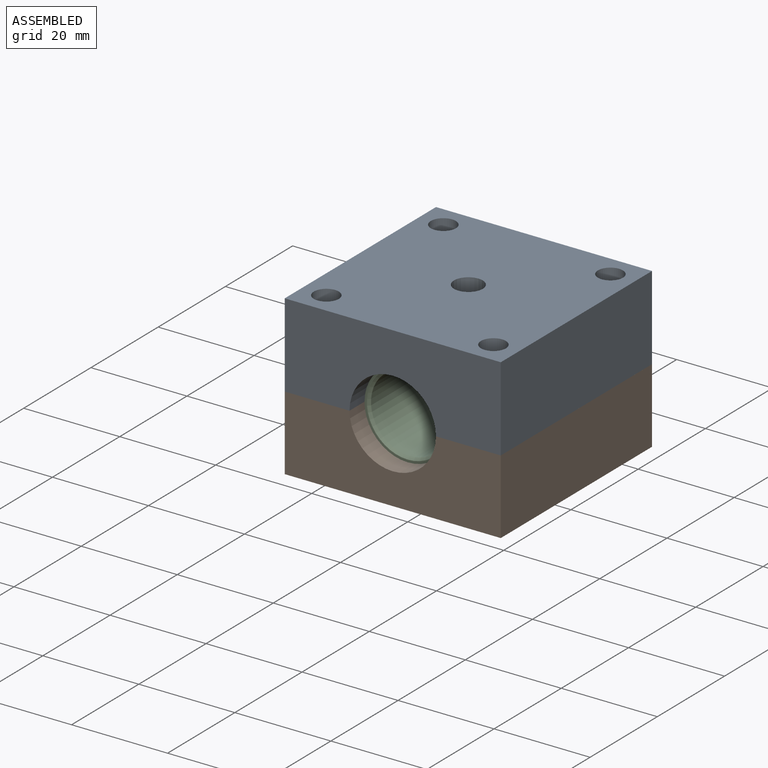
[diagram: assembled view]
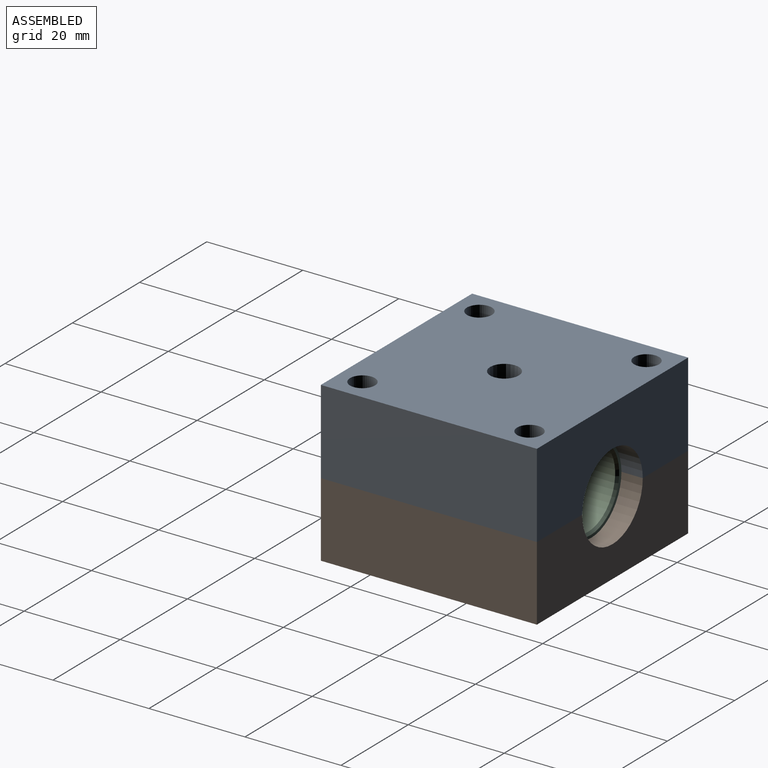
[diagram: assembled view, second angle]
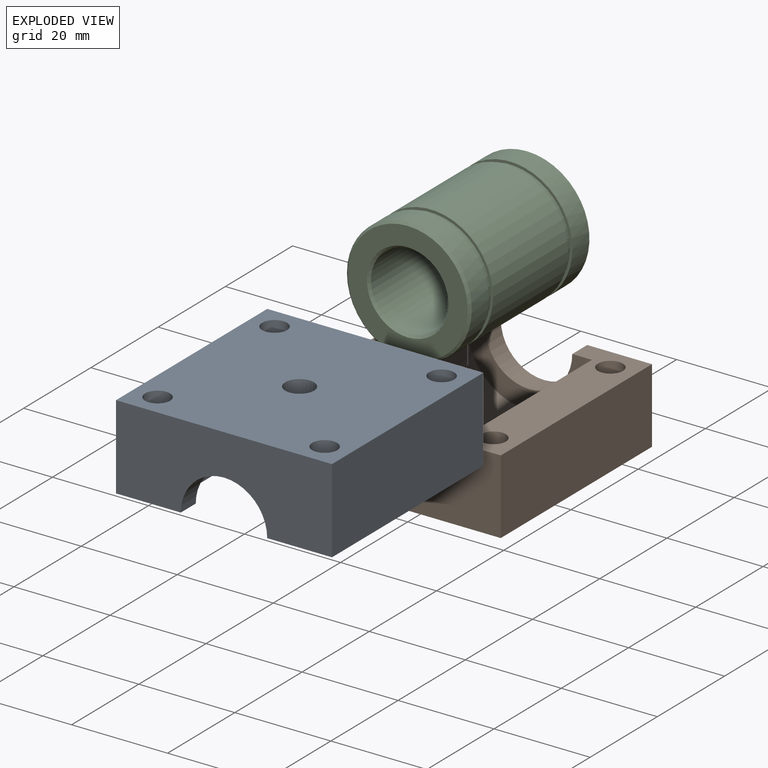
[diagram: exploded view]
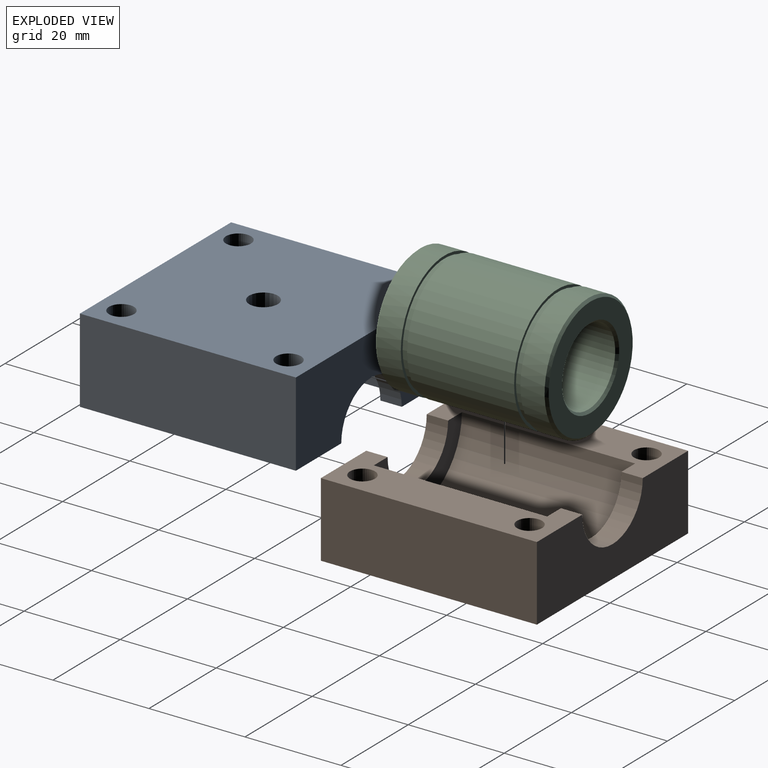
[diagram: exploded view, second angle]
ASSEMBLY  parts=3 mates=4
PART A: 115 faces, bbox 45x45x17.6 mm
  f0: plane 26.2x13.1mm, normal (0,-1,0), area 141.7mm2, adj f1,f2,f3,f4,f5,f6,f7,f8
  f1: plane 36.1x2.05mm, normal (-1,0,0.08), area 74.2mm2, adj f0,f2,f18,f34
  f2: plane 36.1x2mm, normal (-0.97,0,0.23), area 74.2mm2, adj f0,f1,f3,f18
  f3: plane 36.1x1.9mm, normal (-0.92,0,0.38), area 74.2mm2, adj f0,f2,f4,f18
  f4: plane 36.1x1.75mm, normal (-0.85,0,0.52), area 74.2mm2, adj f0,f3,f5,f18
  f5: plane 36.1x1.56mm, normal (-0.76,0,0.65), area 74.2mm2, adj f0,f4,f6,f18
  f6: plane 36.1x1.56mm, normal (-0.65,0,0.76), area 74.2mm2, adj f0,f5,f7,f18
  f7: plane 36.1x1.75mm, normal (-0.52,0,0.85), area 74.2mm2, adj f0,f6,f9,f18
  f8: plane 17.27x1.92mm, normal (-0.23,0,0.97), area 7.7mm2, adj f0,f87,f99,f112,f113
  f9: plane 36.1x1.9mm, normal (-0.38,0,0.92), area 74.2mm2, adj f0,f7,f18,f33
  f10: plane 15.87x2.05mm, normal (-0.08,0,1), area 31.5mm2, adj f0,f11,f12,f100,f104,f111
  f11: plane 15.87x1.98mm, normal (-0.23,0,0.97), area 16.2mm2, adj f0,f10,f112
  f12: plane 15.87x2.05mm, normal (0.08,0,1), area 31.5mm2, adj f0,f10,f13,f97,f101,f108
  f13: plane 17.27x0.85mm, normal (0.23,0,0.97), area 6.9mm2, adj f0,f12,f44,f97,f105,f109
  f14: plane 0.15x0.02mm, normal (-0.23,0,0.97), area 0mm2, adj f18,f31,f32,f33,f50,f51
  f15: plane 15.87x2.05mm, normal (-0.08,0,1), area 31.5mm2, adj f16,f18,f51,f92,f93,f98
  f16: plane 15.87x2.05mm, normal (0.08,0,1), area 31.5mm2, adj f15,f17,f18,f94,f107,f110
  f17: plane 36.1x2mm, normal (0.23,0,0.97), area 44mm2, adj f0,f16,f18,f30,f45,f47,f94,f95
  f18: plane 26.2x13.1mm, normal (0,1,0), area 141.7mm2, adj f1,f2,f3,f4,f5,f6,f7,f9
  f19: cylinder r=2.6mm len=17.55mm, axis (0,0,1), area 286.7mm2, adj f34,f37
  f20: cylinder r=2.6mm len=17.55mm, axis (0,0,1), area 286.7mm2, adj f34,f37
  f21: cylinder r=2.6mm len=17.55mm, axis (0,0,1), area 286.7mm2, adj f35,f37
  f22: cylinder r=2.6mm len=17.55mm, axis (0,0,1), area 286.7mm2, adj f35,f37
  f23: plane 36.1x2.05mm, normal (1,0,0.08), area 74.2mm2, adj f0,f18,f24,f35
  f24: plane 36.1x2mm, normal (0.97,0,0.23), area 74.2mm2, adj f0,f18,f23,f25
  f25: plane 36.1x1.9mm, normal (0.92,0,0.38), area 74.2mm2, adj f0,f18,f24,f26
  f26: plane 36.1x1.75mm, normal (0.85,0,0.52), area 74.2mm2, adj f0,f18,f25,f27
  f27: plane 36.1x1.56mm, normal (0.76,0,0.65), area 74.2mm2, adj f0,f18,f26,f28
  f28: plane 36.1x1.56mm, normal (0.65,0,0.76), area 74.2mm2, adj f0,f18,f27,f29
  f29: plane 36.1x1.75mm, normal (0.52,0,0.85), area 74.2mm2, adj f0,f18,f28,f30
  f30: plane 36.1x1.9mm, normal (0.38,0,0.92), area 74.2mm2, adj f0,f17,f18,f29
  f31: plane 17.12x1.91mm, normal (-0.23,0,0.97), area 7.7mm2, adj f14,f32,f50,f90,f91
  f32: plane 17.9x1.13mm, normal (-0.23,0,0.97), area 1.4mm2, adj f14,f31,f33,f89
  f33: plane 36.1x1.05mm, normal (-0.23,0,0.97), area 19.6mm2, adj f0,f9,f14,f18,f32,f113
  f34: plane 45x13.5mm, normal (0,0,1), area 417mm2, adj f0,f1,f18,f19,f20,f36,f52,f53
  f35: plane 45x13.5mm, normal (0,0,1), area 417mm2, adj f0,f18,f21,f22,f23,f36,f48,f52
  f36: plane 45x17.55mm, normal (0,1,0), area 663mm2, adj f34,f35,f37,f38,f39,f40,f41,f42
  f37: plane 45x45mm, normal (0,0,-1), area 1912.1mm2, adj f19,f20,f21,f22,f36,f48,f52,f53
  f38: plane 4.45x1.37mm, normal (-0.23,0,0.97), area 6.3mm2, adj f0,f36,f39,f49
  f39: plane 4.45x1.41mm, normal (-0.08,0,1), area 6.3mm2, adj f0,f36,f38,f40
  f40: plane 4.45x1.41mm, normal (0.08,0,1), area 6.3mm2, adj f0,f36,f39,f41
  f41: plane 4.45x1.37mm, normal (0.23,0,0.97), area 6.3mm2, adj f0,f36,f40,f42
  f42: plane 4.45x1.3mm, normal (0.38,0,0.92), area 6.3mm2, adj f0,f36,f41,f80
  f43: plane 18.05x1.98mm, normal (0.23,0,0.97), area 18.4mm2, adj f0,f44,f47
  f44: plane 18.05x0.94mm, normal (0.23,0,0.97), area 0.6mm2, adj f13,f43,f96
  f45: plane 17.9x0.94mm, normal (0.23,0,0.97), area 0.6mm2, adj f17,f47,f114
  f46: plane 4.45x1.3mm, normal (-0.38,0,0.92), area 6.3mm2, adj f18,f52,f65,f66
  f47: plane 35.95x1.98mm, normal (0.23,0,0.97), area 0.9mm2, adj f17,f43,f45
  f48: plane 45x17.55mm, normal (-1,0,0), area 789.8mm2, adj f35,f36,f37,f52
  f49: plane 4.45x1.3mm, normal (-0.38,0,0.92), area 6.3mm2, adj f0,f36,f38,f79
  f50: plane 15.78x1.96mm, normal (-0.23,0,0.97), area 0.7mm2, adj f14,f31,f51,f92
  f51: plane 15.87x1.96mm, normal (-0.23,0,0.97), area 16.2mm2, adj f14,f15,f18,f50
  f52: plane 45x17.55mm, normal (0,-1,0), area 663mm2, adj f34,f35,f37,f46,f48,f53,f54,f55
  f53: plane 45x17.55mm, normal (1,0,0), area 789.8mm2, adj f34,f36,f37,f52
  f54: plane 4.45x1.41mm, normal (1,0,0.08), area 6.3mm2, adj f18,f35,f52,f55
  f55: plane 4.45x1.37mm, normal (0.97,0,0.23), area 6.3mm2, adj f18,f52,f54,f56
  f56: plane 4.45x1.3mm, normal (0.92,0,0.38), area 6.3mm2, adj f18,f52,f55,f57
  f57: plane 4.45x1.2mm, normal (0.85,0,0.52), area 6.3mm2, adj f18,f52,f56,f58
  f58: plane 4.45x1.07mm, normal (0.76,0,0.65), area 6.3mm2, adj f18,f52,f57,f59
  f59: plane 4.45x1.07mm, normal (0.65,0,0.76), area 6.3mm2, adj f18,f52,f58,f60
  f60: plane 4.45x1.2mm, normal (0.52,0,0.85), area 6.3mm2, adj f18,f52,f59,f61
  f61: plane 4.45x1.3mm, normal (0.38,0,0.92), area 6.3mm2, adj f18,f52,f60,f62
  f62: plane 4.45x1.37mm, normal (0.23,0,0.97), area 6.3mm2, adj f18,f52,f61,f63
  f63: plane 4.45x1.41mm, normal (0.08,0,1), area 6.3mm2, adj f18,f52,f62,f64
  f64: plane 4.45x1.41mm, normal (-0.08,0,1), area 6.3mm2, adj f18,f52,f63,f65
  f65: plane 4.45x1.37mm, normal (-0.23,0,0.97), area 6.3mm2, adj f18,f46,f52,f64
  f66: plane 4.45x1.2mm, normal (-0.52,0,0.85), area 6.3mm2, adj f18,f46,f52,f67
  f67: plane 4.45x1.07mm, normal (-0.65,0,0.76), area 6.3mm2, adj f18,f52,f66,f68
  f68: plane 4.45x1.07mm, normal (-0.76,0,0.65), area 6.3mm2, adj f18,f52,f67,f69
  f69: plane 4.45x1.2mm, normal (-0.85,0,0.52), area 6.3mm2, adj f18,f52,f68,f70
  f70: plane 4.45x1.3mm, normal (-0.92,0,0.38), area 6.3mm2, adj f18,f52,f69,f71
  f71: plane 4.45x1.37mm, normal (-0.97,0,0.23), area 6.3mm2, adj f18,f52,f70,f72
  f72: plane 4.45x1.41mm, normal (-1,0,0.08), area 6.3mm2, adj f18,f34,f52,f71
  f73: plane 4.45x1.41mm, normal (-1,0,0.08), area 6.3mm2, adj f0,f34,f36,f74
  f74: plane 4.45x1.37mm, normal (-0.97,0,0.23), area 6.3mm2, adj f0,f36,f73,f75
  f75: plane 4.45x1.3mm, normal (-0.92,0,0.38), area 6.3mm2, adj f0,f36,f74,f76
  f76: plane 4.45x1.2mm, normal (-0.85,0,0.52), area 6.3mm2, adj f0,f36,f75,f77
  f77: plane 4.45x1.07mm, normal (-0.76,0,0.65), area 6.3mm2, adj f0,f36,f76,f78
  f78: plane 4.45x1.07mm, normal (-0.65,0,0.76), area 6.3mm2, adj f0,f36,f77,f79
  f79: plane 4.45x1.2mm, normal (-0.52,0,0.85), area 6.3mm2, adj f0,f36,f49,f78
  f80: plane 4.45x1.2mm, normal (0.52,0,0.85), area 6.3mm2, adj f0,f36,f42,f81
  f81: plane 4.45x1.07mm, normal (0.65,0,0.76), area 6.3mm2, adj f0,f36,f80,f82
  f82: plane 4.45x1.07mm, normal (0.76,0,0.65), area 6.3mm2, adj f0,f36,f81,f83
  f83: plane 4.45x1.2mm, normal (0.85,0,0.52), area 6.3mm2, adj f0,f36,f82,f84
  f84: plane 4.45x1.3mm, normal (0.92,0,0.38), area 6.3mm2, adj f0,f36,f83,f85
  f85: plane 4.45x1.37mm, normal (0.97,0,0.23), area 6.3mm2, adj f0,f36,f84,f86
  f86: plane 4.45x1.41mm, normal (1,0,0.08), area 6.3mm2, adj f0,f35,f36,f85
  f87: plane 4.82x0.72mm, normal (-0.92,-0.38,0), area 3.7mm2, adj f8,f37,f88,f99
  f88: plane 4.84x0.78mm, normal (-0.99,-0.13,0), area 3.8mm2, adj f37,f87,f89,f113
  f89: plane 4.84x0.78mm, normal (-0.99,0.13,0), area 3.8mm2, adj f32,f37,f88,f90
  f90: plane 4.82x0.72mm, normal (-0.92,0.38,0), area 3.7mm2, adj f31,f37,f89,f91
  f91: plane 4.74x0.62mm, normal (-0.79,0.61,0), area 3.7mm2, adj f31,f37,f90,f92
  f92: plane 4.63x0.62mm, normal (-0.61,0.79,0), area 3.6mm2, adj f15,f37,f50,f91,f93
  f93: plane 4.57x0.72mm, normal (-0.38,0.92,0), area 3.6mm2, adj f15,f37,f92,f98
  f94: plane 4.63x0.62mm, normal (0.61,0.79,0), area 3.6mm2, adj f16,f17,f37,f95,f110
  f95: plane 4.74x0.62mm, normal (0.79,0.61,0), area 3.7mm2, adj f17,f37,f94,f106
  f96: plane 4.84x0.78mm, normal (0.99,-0.13,0), area 3.8mm2, adj f37,f44,f109,f114
  f97: plane 4.63x0.62mm, normal (0.61,-0.79,0), area 3.6mm2, adj f12,f13,f37,f105,f108
  f98: plane 4.51x0.78mm, normal (-0.13,0.99,0), area 3.5mm2, adj f15,f37,f93,f107
  f99: plane 4.74x0.62mm, normal (-0.79,-0.61,0), area 3.7mm2, adj f8,f37,f87,f102
  f100: plane 4.51x0.78mm, normal (-0.13,-0.99,0), area 3.5mm2, adj f10,f37,f101,f111
  f101: plane 4.51x0.78mm, normal (0.13,-0.99,0), area 3.5mm2, adj f12,f37,f100,f108
  f102: plane 4.63x0.62mm, normal (-0.61,-0.79,0), area 1.8mm2, adj f37,f99,f103
  f103: plane 4.63x0.62mm, normal (-0.61,-0.79,0), area 0.2mm2, adj f102,f104,f112
  f104: plane 4.61x0.55mm, normal (-0.61,-0.79,0), area 1.6mm2, adj f10,f103,f111
  f105: plane 4.74x0.62mm, normal (0.79,-0.61,0), area 3.7mm2, adj f13,f37,f97,f109
  f106: plane 4.82x0.72mm, normal (0.92,0.38,0), area 3.7mm2, adj f17,f37,f95,f114
  f107: plane 4.51x0.78mm, normal (0.13,0.99,0), area 3.5mm2, adj f16,f37,f98,f110
  f108: plane 4.57x0.72mm, normal (0.38,-0.92,0), area 3.6mm2, adj f12,f37,f97,f101
  f109: plane 4.82x0.72mm, normal (0.92,-0.38,0), area 3.7mm2, adj f13,f37,f96,f105
  f110: plane 4.57x0.72mm, normal (0.38,0.92,0), area 3.6mm2, adj f16,f37,f94,f107
  f111: plane 4.57x0.72mm, normal (-0.38,-0.92,0), area 3.6mm2, adj f10,f37,f100,f104
  f112: plane 15.93x1.98mm, normal (-0.23,0,0.97), area 0.6mm2, adj f8,f11,f103
  f113: plane 18.05x1.14mm, normal (-0.23,0,0.97), area 1.4mm2, adj f0,f8,f33,f88
  f114: plane 4.84x0.78mm, normal (0.99,0.13,0), area 3.8mm2, adj f37,f45,f96,f106
PART B: 139 faces, bbox 45x45x15.6 mm
  f0: plane 8.2x2.75mm, normal (0,-1,0), area 22.6mm2, adj f1,f3,f130,f138
  f1: plane 8.2x2.75mm, normal (1,0,0), area 22.6mm2, adj f0,f2,f130,f138
  f2: plane 8.2x2.75mm, normal (0,1,0), area 22.6mm2, adj f1,f3,f130,f138
  f3: plane 8.2x2.75mm, normal (-1,0,0), area 22.6mm2, adj f0,f2,f130,f138
  f4: plane 8.2x2.75mm, normal (0,-1,0), area 22.6mm2, adj f5,f7,f130,f136
  f5: plane 8.2x2.75mm, normal (1,0,0), area 22.6mm2, adj f4,f6,f130,f136
  f6: plane 8.2x2.75mm, normal (0,1,0), area 22.6mm2, adj f5,f7,f130,f136
  f7: plane 8.2x2.75mm, normal (-1,0,0), area 22.6mm2, adj f4,f6,f130,f136
  f8: plane 8.2x2.75mm, normal (0,-1,0), area 22.6mm2, adj f9,f11,f130,f134
  f9: plane 8.2x2.75mm, normal (1,0,0), area 22.6mm2, adj f8,f10,f130,f134
  f10: plane 8.2x2.75mm, normal (0,1,0), area 22.6mm2, adj f9,f11,f130,f134
  f11: plane 8.2x2.75mm, normal (-1,0,0), area 22.6mm2, adj f8,f10,f130,f134
  f12: plane 8.2x2.75mm, normal (0,-1,0), area 22.6mm2, adj f13,f15,f130,f132
  f13: plane 8.2x2.75mm, normal (1,0,0), area 22.6mm2, adj f12,f14,f130,f132
  f14: plane 8.2x2.75mm, normal (0,1,0), area 22.6mm2, adj f13,f15,f130,f132
  f15: plane 8.2x2.75mm, normal (-1,0,0), area 22.6mm2, adj f12,f14,f130,f132
  f16: cylinder r=2.6mm len=12.55mm, axis (0,0,1), area 205mm2, adj f77,f135
  f17: cylinder r=2.6mm len=12.55mm, axis (0,0,1), area 205mm2, adj f77,f137
  f18: cylinder r=2.6mm len=12.55mm, axis (0,0,1), area 205mm2, adj f78,f131
  f19: cylinder r=2.6mm len=12.55mm, axis (0,0,1), area 205mm2, adj f78,f133
  f20: plane 45x15.55mm, normal (-1,0,0), area 699.8mm2, adj f21,f78,f79,f130
  f21: plane 45x15.55mm, normal (0,-1,0), area 573mm2, adj f20,f22,f77,f78,f88,f95,f96,f97
  f22: plane 45x15.55mm, normal (1,0,0), area 699.8mm2, adj f21,f77,f79,f130
  f23: plane 2.82x0.72mm, normal (-0.92,-0.38,0), area 2.2mm2, adj f24,f35,f72,f130
  f24: plane 2.84x0.78mm, normal (-0.99,-0.13,0), area 2.2mm2, adj f23,f25,f129,f130
  f25: plane 2.84x0.78mm, normal (-0.99,0.13,0), area 2.2mm2, adj f24,f26,f61,f130
  f26: plane 2.82x0.72mm, normal (-0.92,0.38,0), area 2.2mm2, adj f25,f27,f60,f130
  f27: plane 2.74x0.62mm, normal (-0.79,0.61,0), area 2.1mm2, adj f26,f28,f60,f130
  f28: plane 2.63x0.62mm, normal (-0.61,0.79,0), area 2mm2, adj f27,f29,f57,f59,f130
  f29: plane 2.57x0.72mm, normal (-0.38,0.92,0), area 2mm2, adj f28,f34,f57,f130
  f30: plane 2.63x0.62mm, normal (0.61,0.79,0), area 2mm2, adj f31,f46,f55,f56,f130
  f31: plane 2.74x0.62mm, normal (0.79,0.61,0), area 2.1mm2, adj f30,f42,f55,f130
  f32: plane 2.84x0.78mm, normal (0.99,-0.13,0), area 2.2mm2, adj f45,f48,f87,f130
  f33: plane 2.63x0.62mm, normal (0.61,-0.79,0), area 2mm2, adj f41,f44,f75,f76,f130
  f34: plane 2.51x0.78mm, normal (-0.13,0.99,0), area 1.9mm2, adj f29,f43,f57,f130
  f35: plane 2.74x0.62mm, normal (-0.79,-0.61,0), area 2.1mm2, adj f23,f38,f72,f130
  f36: plane 2.51x0.78mm, normal (-0.13,-0.99,0), area 1.9mm2, adj f37,f47,f73,f130
  f37: plane 2.51x0.78mm, normal (0.13,-0.99,0), area 1.9mm2, adj f36,f44,f75,f130
  f38: plane 2.63x0.35mm, normal (-0.61,-0.79,0), area 0.6mm2, adj f35,f39,f130
  f39: plane 2.63x0.38mm, normal (-0.61,-0.79,0), area 0.2mm2, adj f38,f40,f128,f130
  f40: plane 2.61x0.55mm, normal (-0.61,-0.79,0), area 1.3mm2, adj f39,f47,f73,f130
  f41: plane 2.74x0.62mm, normal (0.79,-0.61,0), area 2.1mm2, adj f33,f45,f76,f130
  f42: plane 2.82x0.72mm, normal (0.92,0.38,0), area 2.2mm2, adj f31,f48,f55,f130
  f43: plane 2.51x0.78mm, normal (0.13,0.99,0), area 1.9mm2, adj f34,f46,f56,f130
  f44: plane 2.57x0.72mm, normal (0.38,-0.92,0), area 2mm2, adj f33,f37,f75,f130
  f45: plane 2.82x0.72mm, normal (0.92,-0.38,0), area 2.2mm2, adj f32,f41,f76,f130
  f46: plane 2.57x0.72mm, normal (0.38,0.92,0), area 2mm2, adj f30,f43,f56,f130
  f47: plane 2.57x0.72mm, normal (-0.38,-0.92,0), area 2mm2, adj f36,f40,f73,f130
  f48: plane 2.84x0.78mm, normal (0.99,0.13,0), area 2.2mm2, adj f32,f42,f54,f130
  f49: plane 26.2x13.1mm, normal (0,1,0), area 141.7mm2, adj f50,f51,f52,f53,f54,f55,f56,f57
  f50: plane 36.1x1.56mm, normal (0.65,0,0.76), area 74.2mm2, adj f49,f51,f71,f90
  f51: plane 36.1x1.75mm, normal (0.52,0,0.85), area 74.2mm2, adj f49,f50,f53,f71
  f52: plane 36.1x1.98mm, normal (0.23,0,0.97), area 0.9mm2, adj f49,f54,f86,f89
  f53: plane 36.1x1.9mm, normal (0.38,0,0.92), area 74.2mm2, adj f49,f51,f71,f89
  f54: plane 18.05x0.94mm, normal (0.23,0,0.97), area 0.6mm2, adj f48,f49,f52,f55
  f55: plane 17.27x0.85mm, normal (0.23,0,0.97), area 6.9mm2, adj f30,f31,f42,f49,f54,f56
  f56: plane 15.87x2.05mm, normal (0.08,0,1), area 31.5mm2, adj f30,f43,f46,f49,f55,f57
  f57: plane 15.87x2.05mm, normal (-0.08,0,1), area 31.5mm2, adj f28,f29,f34,f49,f56,f58
  f58: plane 15.87x1.98mm, normal (-0.23,0,0.97), area 16.2mm2, adj f49,f57,f59
  f59: plane 15.93x1.98mm, normal (-0.23,0,0.97), area 0.7mm2, adj f28,f49,f58,f60
  f60: plane 17.27x1.92mm, normal (-0.23,0,0.97), area 7.7mm2, adj f26,f27,f49,f59,f61
  f61: plane 18.05x1.14mm, normal (-0.23,0,0.97), area 1.4mm2, adj f25,f49,f60,f62
  f62: plane 36.1x1.05mm, normal (-0.23,0,0.97), area 19.6mm2, adj f49,f61,f63,f71,f129
  f63: plane 36.1x1.9mm, normal (-0.38,0,0.92), area 74.2mm2, adj f49,f62,f64,f71
  f64: plane 36.1x1.75mm, normal (-0.52,0,0.85), area 74.2mm2, adj f49,f63,f65,f71
  f65: plane 36.1x1.56mm, normal (-0.65,0,0.76), area 74.2mm2, adj f49,f64,f66,f71
  f66: plane 36.1x1.56mm, normal (-0.76,0,0.65), area 74.2mm2, adj f49,f65,f67,f71
  f67: plane 36.1x1.75mm, normal (-0.85,0,0.52), area 74.2mm2, adj f49,f66,f68,f71
  f68: plane 36.1x1.9mm, normal (-0.92,0,0.38), area 74.2mm2, adj f49,f67,f69,f71
  f69: plane 36.1x2mm, normal (-0.97,0,0.23), area 74.2mm2, adj f49,f68,f70,f71
  f70: plane 36.1x2.05mm, normal (-1,0,0.08), area 74.2mm2, adj f49,f69,f71,f77
  f71: plane 26.2x13.1mm, normal (0,-1,0), area 141.7mm2, adj f50,f51,f53,f62,f63,f64,f65,f66
  f72: plane 17.27x1.92mm, normal (-0.23,0,0.97), area 7.7mm2, adj f23,f35,f71,f128,f129
  f73: plane 15.87x2.05mm, normal (-0.08,0,1), area 31.5mm2, adj f36,f40,f47,f71,f74,f75
  f74: plane 15.87x1.98mm, normal (-0.23,0,0.97), area 16.2mm2, adj f71,f73,f128
  f75: plane 15.87x2.05mm, normal (0.08,0,1), area 31.5mm2, adj f33,f37,f44,f71,f73,f76
  f76: plane 17.27x0.85mm, normal (0.23,0,0.97), area 6.9mm2, adj f33,f41,f45,f71,f75,f87
  f77: plane 45x13.5mm, normal (0,0,1), area 417mm2, adj f16,f17,f21,f22,f49,f70,f71,f79
  f78: plane 45x13.5mm, normal (0,0,1), area 417mm2, adj f18,f19,f20,f21,f49,f71,f79,f80
  f79: plane 45x15.55mm, normal (0,1,0), area 573mm2, adj f20,f22,f77,f78,f81,f82,f83,f84
  f80: plane 36.1x2.05mm, normal (1,0,0.08), area 74.2mm2, adj f49,f71,f78,f94
  f81: plane 4.45x1.37mm, normal (-0.23,0,0.97), area 6.3mm2, adj f71,f79,f82,f91
  f82: plane 4.45x1.41mm, normal (-0.08,0,1), area 6.3mm2, adj f71,f79,f81,f83
  f83: plane 4.45x1.41mm, normal (0.08,0,1), area 6.3mm2, adj f71,f79,f82,f84
  f84: plane 4.45x1.37mm, normal (0.23,0,0.97), area 6.3mm2, adj f71,f79,f83,f85
  f85: plane 4.45x1.3mm, normal (0.38,0,0.92), area 6.3mm2, adj f71,f79,f84,f121
  f86: plane 18.05x1.98mm, normal (0.23,0,0.97), area 18.4mm2, adj f52,f71,f87
  f87: plane 18.05x0.94mm, normal (0.23,0,0.97), area 0.6mm2, adj f32,f76,f86
  f88: plane 4.45x1.3mm, normal (-0.38,0,0.92), area 6.3mm2, adj f21,f49,f106,f107
  f89: plane 36.1x1.99mm, normal (0.23,0,0.97), area 37.1mm2, adj f49,f52,f53,f71
  f90: plane 36.1x1.56mm, normal (0.76,0,0.65), area 74.2mm2, adj f49,f50,f71,f92
  f91: plane 4.45x1.3mm, normal (-0.38,0,0.92), area 6.3mm2, adj f71,f79,f81,f120
  f92: plane 36.1x1.75mm, normal (0.85,0,0.52), area 74.2mm2, adj f49,f71,f90,f93
  f93: plane 36.1x1.9mm, normal (0.92,0,0.38), area 74.2mm2, adj f49,f71,f92,f94
  f94: plane 36.1x2mm, normal (0.97,0,0.23), area 74.2mm2, adj f49,f71,f80,f93
  f95: plane 4.45x1.41mm, normal (1,0,0.08), area 6.3mm2, adj f21,f49,f78,f96
  f96: plane 4.45x1.37mm, normal (0.97,0,0.23), area 6.3mm2, adj f21,f49,f95,f97
  f97: plane 4.45x1.3mm, normal (0.92,0,0.38), area 6.3mm2, adj f21,f49,f96,f98
  f98: plane 4.45x1.2mm, normal (0.85,0,0.52), area 6.3mm2, adj f21,f49,f97,f99
  f99: plane 4.45x1.07mm, normal (0.76,0,0.65), area 6.3mm2, adj f21,f49,f98,f100
  f100: plane 4.45x1.07mm, normal (0.65,0,0.76), area 6.3mm2, adj f21,f49,f99,f101
  f101: plane 4.45x1.2mm, normal (0.52,0,0.85), area 6.3mm2, adj f21,f49,f100,f102
  f102: plane 4.45x1.3mm, normal (0.38,0,0.92), area 6.3mm2, adj f21,f49,f101,f103
  f103: plane 4.45x1.37mm, normal (0.23,0,0.97), area 6.3mm2, adj f21,f49,f102,f104
  f104: plane 4.45x1.41mm, normal (0.08,0,1), area 6.3mm2, adj f21,f49,f103,f105
  f105: plane 4.45x1.41mm, normal (-0.08,0,1), area 6.3mm2, adj f21,f49,f104,f106
  f106: plane 4.45x1.37mm, normal (-0.23,0,0.97), area 6.3mm2, adj f21,f49,f88,f105
  f107: plane 4.45x1.2mm, normal (-0.52,0,0.85), area 6.3mm2, adj f21,f49,f88,f108
  f108: plane 4.45x1.07mm, normal (-0.65,0,0.76), area 6.3mm2, adj f21,f49,f107,f109
  f109: plane 4.45x1.07mm, normal (-0.76,0,0.65), area 6.3mm2, adj f21,f49,f108,f110
  f110: plane 4.45x1.2mm, normal (-0.85,0,0.52), area 6.3mm2, adj f21,f49,f109,f111
  f111: plane 4.45x1.3mm, normal (-0.92,0,0.38), area 6.3mm2, adj f21,f49,f110,f112
  f112: plane 4.45x1.37mm, normal (-0.97,0,0.23), area 6.3mm2, adj f21,f49,f111,f113
  f113: plane 4.45x1.41mm, normal (-1,0,0.08), area 6.3mm2, adj f21,f49,f77,f112
  f114: plane 4.45x1.41mm, normal (-1,0,0.08), area 6.3mm2, adj f71,f77,f79,f115
  f115: plane 4.45x1.37mm, normal (-0.97,0,0.23), area 6.3mm2, adj f71,f79,f114,f116
  f116: plane 4.45x1.3mm, normal (-0.92,0,0.38), area 6.3mm2, adj f71,f79,f115,f117
  f117: plane 4.45x1.2mm, normal (-0.85,0,0.52), area 6.3mm2, adj f71,f79,f116,f118
  f118: plane 4.45x1.07mm, normal (-0.76,0,0.65), area 6.3mm2, adj f71,f79,f117,f119
  f119: plane 4.45x1.07mm, normal (-0.65,0,0.76), area 6.3mm2, adj f71,f79,f118,f120
  f120: plane 4.45x1.2mm, normal (-0.52,0,0.85), area 6.3mm2, adj f71,f79,f91,f119
  f121: plane 4.45x1.2mm, normal (0.52,0,0.85), area 6.3mm2, adj f71,f79,f85,f122
  f122: plane 4.45x1.07mm, normal (0.65,0,0.76), area 6.3mm2, adj f71,f79,f121,f123
  f123: plane 4.45x1.07mm, normal (0.76,0,0.65), area 6.3mm2, adj f71,f79,f122,f124
  f124: plane 4.45x1.2mm, normal (0.85,0,0.52), area 6.3mm2, adj f71,f79,f123,f125
  f125: plane 4.45x1.3mm, normal (0.92,0,0.38), area 6.3mm2, adj f71,f79,f124,f126
  f126: plane 4.45x1.37mm, normal (0.97,0,0.23), area 6.3mm2, adj f71,f79,f125,f127
  f127: plane 4.45x1.41mm, normal (1,0,0.08), area 6.3mm2, adj f71,f78,f79,f126
  f128: plane 15.93x1.98mm, normal (-0.23,0,0.97), area 0.6mm2, adj f39,f72,f74
  f129: plane 18.05x1.14mm, normal (-0.23,0,0.97), area 1.4mm2, adj f24,f62,f71,f72
  f130: plane 45x45mm, normal (0,0,-1), area 1728.1mm2, adj f0,f1,f2,f3,f4,f5,f6,f7
  f131: plane 5.2x5.2mm, normal (0,0,1), area 21.2mm2, adj f18
  f132: plane 8.2x8.2mm, normal (0,0,-1), area 67.2mm2, adj f12,f13,f14,f15
  f133: plane 5.2x5.2mm, normal (0,0,1), area 21.2mm2, adj f19
  f134: plane 8.2x8.2mm, normal (0,0,-1), area 67.2mm2, adj f8,f9,f10,f11
  f135: plane 5.2x5.2mm, normal (0,0,1), area 21.2mm2, adj f16
  f136: plane 8.2x8.2mm, normal (0,0,-1), area 67.2mm2, adj f4,f5,f6,f7
  f137: plane 5.2x5.2mm, normal (0,0,1), area 21.2mm2, adj f17
  f138: plane 8.2x8.2mm, normal (0,0,-1), area 67.2mm2, adj f0,f1,f2,f3
PART C: 16 faces, bbox 36x26x26 mm
  f0: cone r=8.25mm half-angle=45deg, axis (-1,0,0), area 36.7mm2, adj f1,f2
  f1: cylinder r=8mm len=35mm, axis (1,0,0), area 1759.3mm2, adj f0,f3
  f2: plane 25x25mm, normal (-1,0,0), area 263.9mm2, adj f0,f5
  f3: cone r=8.25mm half-angle=45deg, axis (1,0,0), area 36.7mm2, adj f1,f4
  f4: plane 25x25mm, normal (1,0,0), area 263.9mm2, adj f3,f7
  f5: cone r=12.75mm half-angle=45deg, axis (1,0,0), area 56.6mm2, adj f2,f6
  f6: cylinder r=13mm len=26mm, axis (1,0,0), area 412.5mm2, adj f5,f9
  f7: cone r=12.75mm half-angle=45deg, axis (-1,0,0), area 56.6mm2, adj f4,f8
  f8: cylinder r=13mm len=26mm, axis (1,0,0), area 412.5mm2, adj f7,f15
  f9: plane 26x26mm, normal (1,0,0), area 44mm2, adj f6,f10
  f10: cylinder r=12.45mm len=24.9mm, axis (1,0,0), area 101.7mm2, adj f9,f11
  f11: plane 26x26mm, normal (-1,0,0), area 44mm2, adj f10,f12
  f12: cylinder r=13mm len=26mm, axis (1,0,0), area 1821.5mm2, adj f11,f13
  f13: plane 26x26mm, normal (1,0,0), area 44mm2, adj f12,f14
  f14: cylinder r=12.45mm len=24.9mm, axis (1,0,0), area 101.7mm2, adj f13,f15
  f15: plane 26x26mm, normal (-1,0,0), area 44mm2, adj f8,f14
PLACE A rot(axis=(0,1,0),180deg) t=(108.16,-43.54,23.35)mm
PLACE B rot(axis=(0,1,0),0deg) t=(-108.16,-43.54,-23.35)mm
PLACE C rot(axis=(-0.58,0.58,-0.58),120deg) t=(0,36,0)mm
MATE planar A.f34 <-> B.f78  axis (0,0,-1) through (-17.25,18.05,0)mm
MATE planar B.f20 <-> A.f53  axis (-1,0,0) through (-22.5,18.05,-7.77)mm
MATE planar C.f0 <-> A.f18  axis (0,-1,0) through (0,0,0)mm
MATE planar B.f21 <-> A.f52  axis (0,-1,0) through (-22.5,-4.45,-7.77)mm
